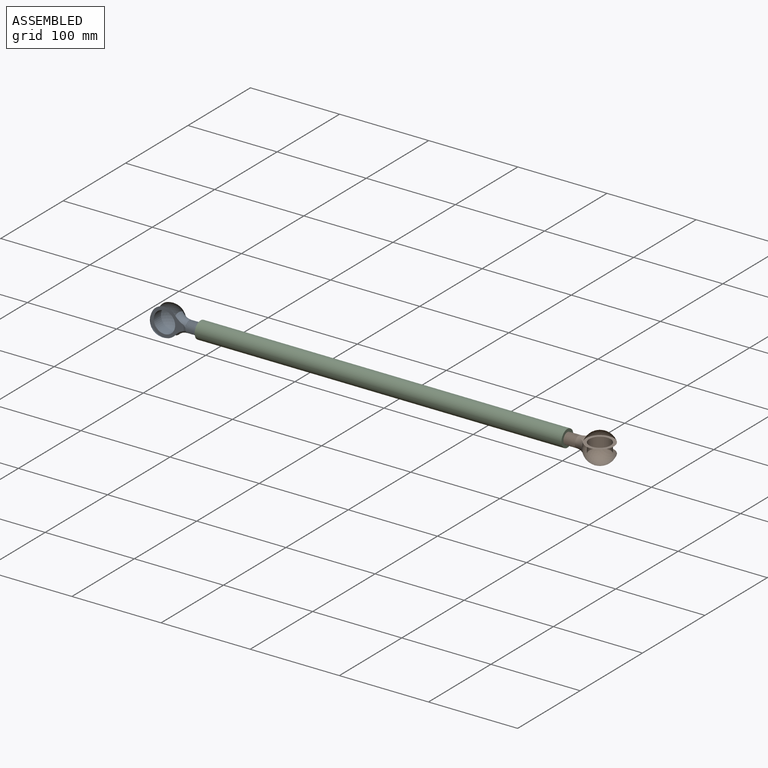
[diagram: assembled view]
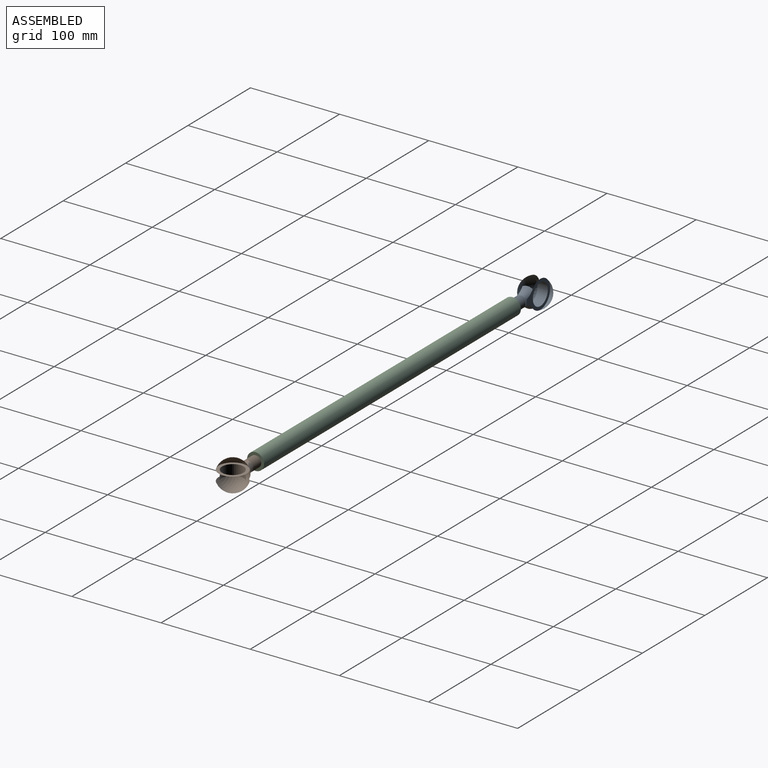
[diagram: assembled view, second angle]
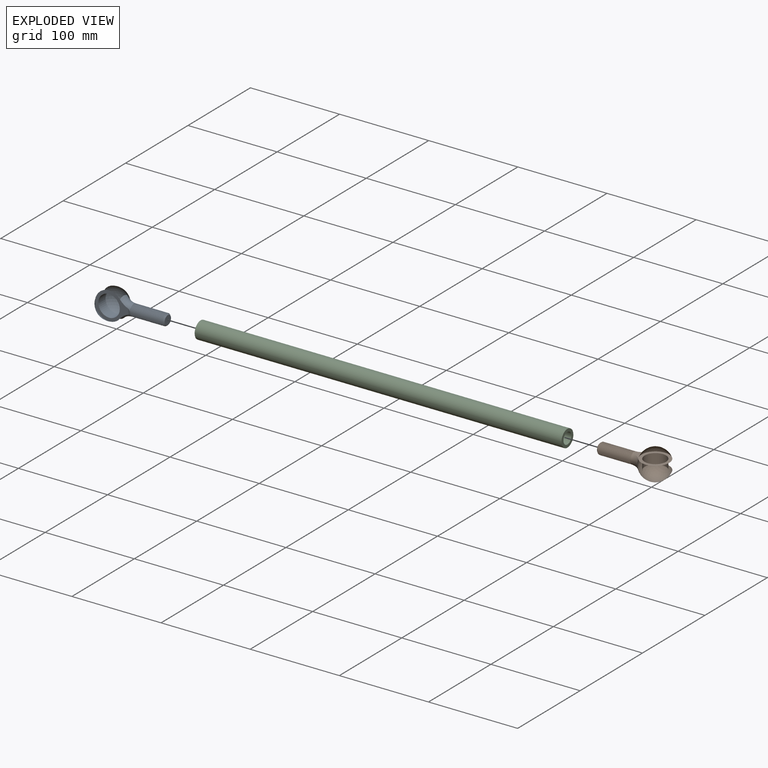
[diagram: exploded view]
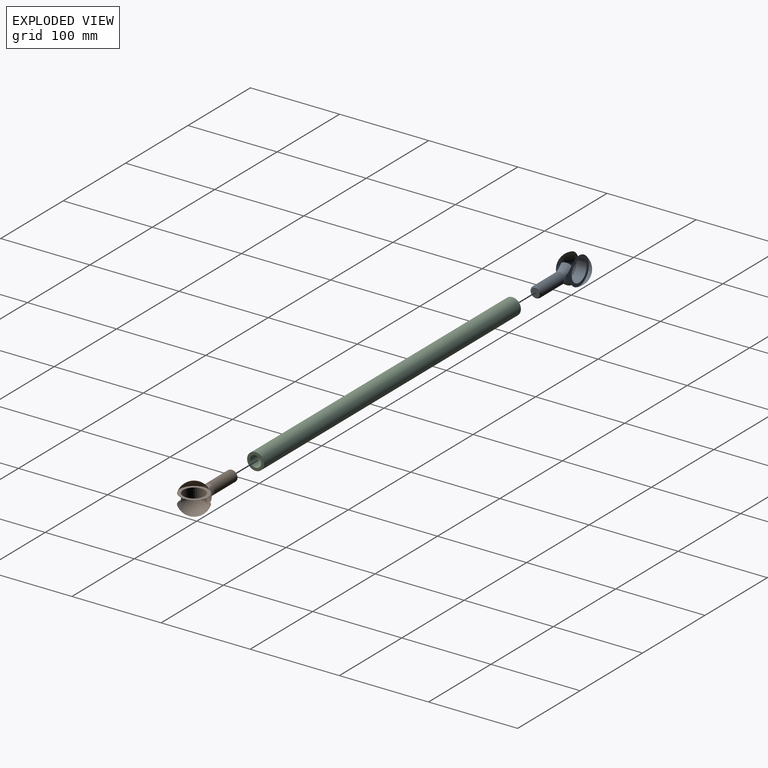
[diagram: exploded view, second angle]
ASSEMBLY  parts=3 mates=2
PART A: 76 faces, bbox 49.1x78.6x49.1 mm
  f0: plane 10.16x10.16mm, normal (0,-1,0), area 81.1mm2, adj f1,f75
  f1: cone r=0mm half-angle=45deg, axis (0,1,0), area 18.6mm2, adj f0,f2,f75
  f2: bspline ~14.55x14.53mm, area 18.3mm2, adj f1,f3,f4,f74,f75
  f3: cylinder r=6.35mm len=4.49mm, axis (0,1,0), area 0.4mm2, adj f2,f4,f75
  f4: cylinder r=6.35mm len=12.7mm, axis (0,1,0), area 3.2mm2, adj f2,f3,f5,f74
  f5: bspline ~38.26x12.7mm, area 1045.6mm2, adj f4,f6,f8,f9,f10,f11,f12,f13
  f6: cylinder r=6.35mm len=12.7mm, axis (0,1,0), area 3.2mm2, adj f5,f7,f8,f74
  f7: bspline ~38.84x12.7mm, area 1026.5mm2, adj f6,f8,f9,f10,f11,f12,f13,f14
  f8: cylinder r=6.35mm len=12.7mm, axis (0,1,0), area 3.2mm2, adj f5,f6,f7,f9
  f9: cylinder r=6.35mm len=12.7mm, axis (0,1,0), area 3.2mm2, adj f5,f7,f8,f10
  f10: cylinder r=6.35mm len=12.7mm, axis (0,1,0), area 3.2mm2, adj f5,f7,f9,f11
  f11: cylinder r=6.35mm len=12.7mm, axis (0,1,0), area 3.2mm2, adj f5,f7,f10,f12
  f12: cylinder r=6.35mm len=12.7mm, axis (0,1,0), area 3.2mm2, adj f5,f7,f11,f13
  f13: cylinder r=6.35mm len=12.7mm, axis (0,1,0), area 3.2mm2, adj f5,f7,f12,f14
  f14: cylinder r=6.35mm len=12.7mm, axis (0,1,0), area 3.2mm2, adj f5,f7,f13,f15
  f15: cylinder r=6.35mm len=12.7mm, axis (0,1,0), area 3.2mm2, adj f5,f7,f14,f16
  f16: cylinder r=6.35mm len=12.7mm, axis (0,1,0), area 3.2mm2, adj f5,f7,f15,f17
  f17: cylinder r=6.35mm len=12.7mm, axis (0,1,0), area 3.2mm2, adj f5,f7,f16,f18
  f18: cylinder r=6.35mm len=12.7mm, axis (0,1,0), area 3.2mm2, adj f5,f7,f17,f19
  f19: cylinder r=6.35mm len=12.7mm, axis (0,1,0), area 3.2mm2, adj f5,f7,f18,f20
  f20: cylinder r=6.35mm len=12.7mm, axis (0,1,0), area 3.2mm2, adj f5,f7,f19,f21
  f21: cylinder r=6.35mm len=12.7mm, axis (0,1,0), area 3.2mm2, adj f5,f7,f20,f22
  f22: cylinder r=6.35mm len=12.7mm, axis (0,1,0), area 3.2mm2, adj f5,f7,f21,f23
  f23: cylinder r=6.35mm len=12.7mm, axis (0,1,0), area 3.2mm2, adj f5,f7,f22,f24
  f24: cylinder r=6.35mm len=12.7mm, axis (0,1,0), area 3.2mm2, adj f5,f7,f23,f25
  f25: cylinder r=6.35mm len=12.7mm, axis (0,1,0), area 3.2mm2, adj f5,f7,f24,f26
  f26: cylinder r=6.35mm len=12.7mm, axis (0,1,0), area 3.2mm2, adj f5,f7,f25,f27
  f27: cylinder r=6.35mm len=12.7mm, axis (0,1,0), area 3.2mm2, adj f5,f7,f26,f28
  f28: cylinder r=6.35mm len=12.7mm, axis (0,1,0), area 3.2mm2, adj f5,f7,f27,f29
  f29: cylinder r=6.35mm len=12.7mm, axis (0,1,0), area 3.2mm2, adj f5,f7,f28,f30
  f30: cylinder r=6.35mm len=12.7mm, axis (0,1,0), area 3.2mm2, adj f5,f7,f29,f31
  f31: cylinder r=6.35mm len=12.7mm, axis (0,1,0), area 3.2mm2, adj f5,f7,f30,f32
  f32: cylinder r=6.35mm len=12.7mm, axis (0,1,0), area 3.2mm2, adj f5,f7,f31,f33
  f33: cylinder r=6.35mm len=12.7mm, axis (0,1,0), area 3.2mm2, adj f5,f7,f32,f34
  f34: cylinder r=6.35mm len=12.7mm, axis (0,1,0), area 3.2mm2, adj f5,f7,f33,f35
  f35: cylinder r=6.35mm len=12.7mm, axis (0,1,0), area 3.2mm2, adj f5,f7,f34,f36
  f36: cylinder r=6.35mm len=12.7mm, axis (0,1,0), area 3.2mm2, adj f5,f7,f35,f37
  f37: cylinder r=6.35mm len=12.7mm, axis (0,1,0), area 3.2mm2, adj f5,f7,f36,f38
  f38: cylinder r=6.35mm len=12.7mm, axis (0,1,0), area 3.2mm2, adj f5,f7,f37,f39
  f39: cylinder r=6.35mm len=12.7mm, axis (0,1,0), area 3.2mm2, adj f5,f7,f38,f40
  f40: cylinder r=6.35mm len=12.7mm, axis (0,1,0), area 3.2mm2, adj f5,f7,f39,f41
  f41: cylinder r=6.35mm len=12.7mm, axis (0,1,0), area 3.2mm2, adj f5,f7,f40,f42
  f42: cylinder r=6.35mm len=12.7mm, axis (0,1,0), area 3.2mm2, adj f5,f7,f41,f43
  f43: cylinder r=6.35mm len=12.7mm, axis (0,1,0), area 3.2mm2, adj f5,f7,f42,f44
  f44: cylinder r=6.35mm len=12.7mm, axis (0,1,0), area 3.2mm2, adj f5,f7,f43,f45
  f45: cylinder r=6.35mm len=12.7mm, axis (0,1,0), area 3.2mm2, adj f5,f7,f44,f46
  f46: cylinder r=6.35mm len=12.7mm, axis (0,1,0), area 3.2mm2, adj f5,f7,f45,f47
  f47: cylinder r=6.35mm len=12.7mm, axis (0,1,0), area 3.2mm2, adj f5,f7,f46,f48
  f48: cylinder r=6.35mm len=12.7mm, axis (0,1,0), area 3.2mm2, adj f5,f7,f47,f49
  f49: cylinder r=6.35mm len=12.7mm, axis (0,1,0), area 3.2mm2, adj f5,f7,f48,f50
  f50: cylinder r=6.35mm len=12.7mm, axis (0,1,0), area 3.2mm2, adj f5,f7,f49,f51
  f51: cylinder r=6.35mm len=12.7mm, axis (0,1,0), area 3.2mm2, adj f5,f7,f50,f52
  f52: cylinder r=6.35mm len=12.7mm, axis (0,1,0), area 3.2mm2, adj f5,f7,f51,f53
  f53: cylinder r=6.35mm len=12.7mm, axis (0,1,0), area 3.2mm2, adj f5,f7,f52,f54
  f54: cylinder r=6.35mm len=12.7mm, axis (0,1,0), area 3.2mm2, adj f5,f7,f53,f55
  f55: cylinder r=6.35mm len=12.7mm, axis (0,1,0), area 3.2mm2, adj f5,f7,f54,f56
  f56: cylinder r=6.35mm len=12.7mm, axis (0,1,0), area 3.2mm2, adj f5,f7,f55,f57
  f57: cylinder r=6.35mm len=12.7mm, axis (0,1,0), area 3.2mm2, adj f5,f7,f56,f58
  f58: cylinder r=6.35mm len=12.7mm, axis (0,1,0), area 3.2mm2, adj f5,f7,f57,f59
  f59: cylinder r=6.35mm len=12.7mm, axis (0,1,0), area 3.2mm2, adj f5,f7,f58,f60
  f60: cylinder r=6.35mm len=12.7mm, axis (0,1,0), area 3.2mm2, adj f5,f7,f59,f61
  f61: cylinder r=6.35mm len=12.7mm, axis (0,1,0), area 3.2mm2, adj f5,f7,f60,f62
  f62: cylinder r=6.35mm len=12.7mm, axis (0,1,0), area 2.8mm2, adj f5,f7,f61,f63
  f63: torus R=22.32mm, axis (0,-1,0), area 90.2mm2, adj f62,f64,f69,f70,f71,f72
  f64: torus R=22.32mm, axis (0,-1,0), area 90.2mm2, adj f63,f65,f67,f69,f72
  f65: plane 6.9x3.09mm, normal (0,0.25,-0.97), area 9.3mm2, adj f64,f66,f67
  f66: torus R=22.32mm, axis (0,-1,0), area 180.4mm2, adj f65,f67,f69,f70,f71,f72
  f67: plane 37.68x31.81mm, normal (0,0,-1), area 376.3mm2, adj f64,f65,f66,f68,f69
  f68: cylinder r=12.03mm len=24.05mm, axis (0,0,1), area 869.6mm2, adj f67,f70
  f69: sphere r=16.67mm, area 2557.4mm2, adj f63,f64,f66,f67,f70
  f70: plane 37.68x31.81mm, normal (0,0,1), area 376.1mm2, adj f63,f66,f68,f69,f71
  f71: plane 6.9x3.09mm, normal (0,0.25,0.97), area 9.3mm2, adj f63,f66,f70
  f72: plane 13.2x13.2mm, normal (0,-1,0), area 15.6mm2, adj f5,f7,f63,f64,f66,f73
  f73: cylinder r=5.53mm len=37.66mm, axis (0,1,0), area 165.1mm2, adj f5,f7,f72,f75
  f74: cylinder r=6.35mm len=12.7mm, axis (0,1,0), area 3.2mm2, adj f2,f4,f5,f6,f7
  f75: cone r=0mm half-angle=45deg, axis (0,1,0), area 23.7mm2, adj f0,f1,f2,f3,f5,f7,f73
PART B: same geometry as A
PART C: 4 faces, bbox 411.5x19.1x19.1 mm
  f0: cylinder r=6.35mm len=411.48mm, axis (1,0,0), area 16417.3mm2, adj f1,f2
  f1: plane 19.05x19.05mm, normal (-1,0,0), area 158.3mm2, adj f0,f3
  f2: plane 19.05x19.05mm, normal (1,0,0), area 158.3mm2, adj f0,f3
  f3: cylinder r=9.53mm len=411.48mm, axis (1,0,0), area 24626mm2, adj f1,f2
PLACE A rot(axis=(0.58,-0.58,0.58),120deg) t=(-218.44,0,0)mm
PLACE B rot(axis=(-0.71,-0.71,0),179.8deg) t=(218.44,0,0)mm
PLACE C at identity fixed
MATE revolute B.f1 <-> C.f0  axis (-1,0,0) through (180.34,0,0)mm
MATE revolute A.f1 <-> C.f0  axis (1,0,0) through (-180.34,0,0)mm
